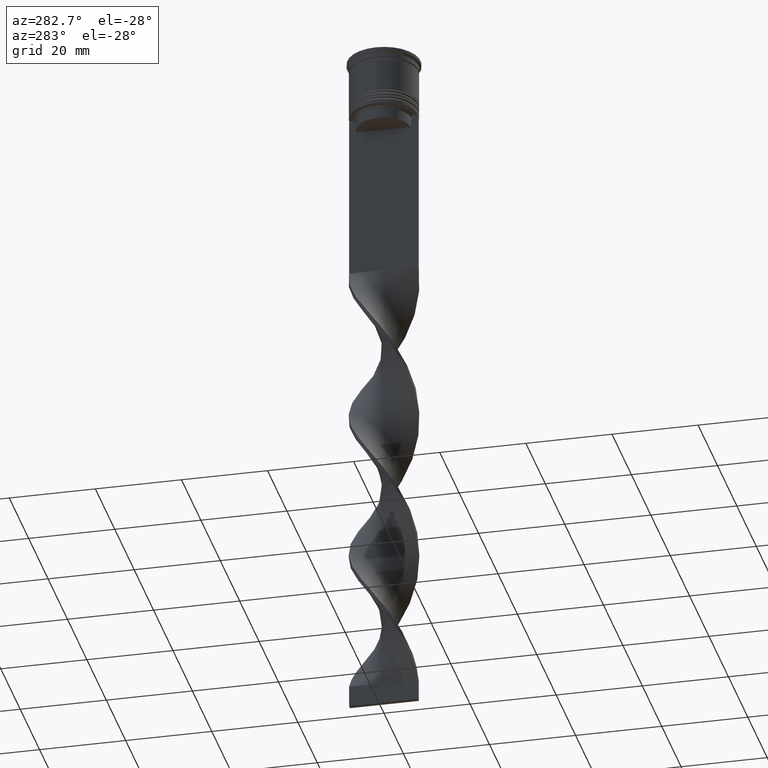
[diagram: clean part render]
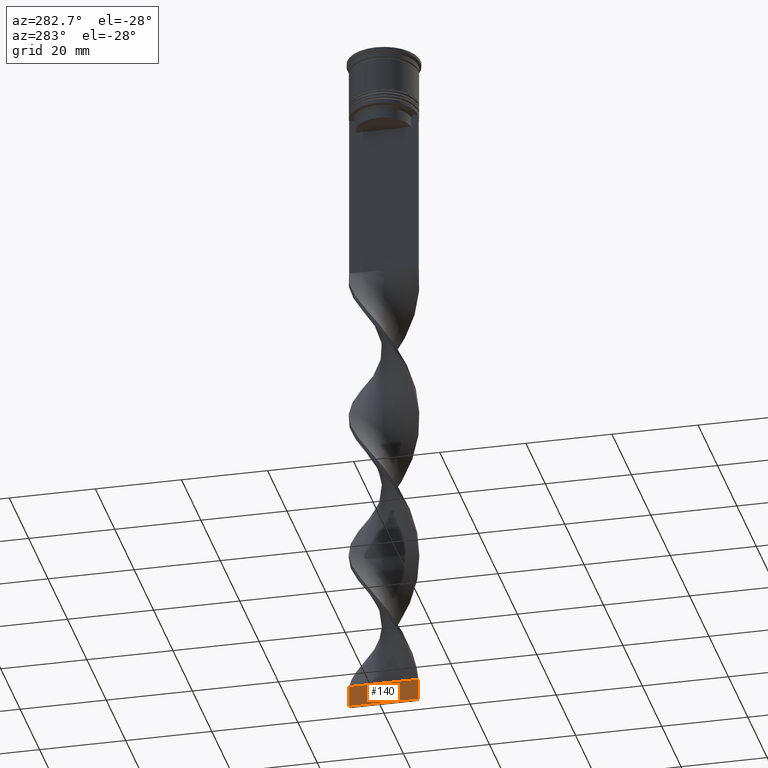
[diagram: same view with one face highlighted and labeled with its STEP entity id]
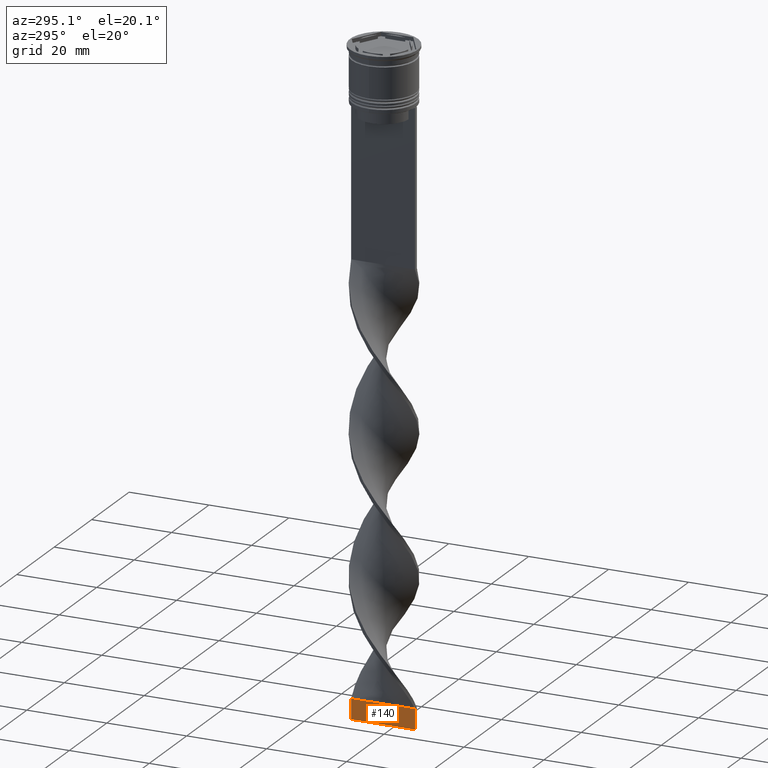
[diagram: same view with one face highlighted and labeled with its STEP entity id]
A machine part, auxiliary view. The second image highlights one B-rep face of the part: STEP entity #140.
A second angle (auxiliary view) of the same face is appended — the face is thin or edge-on in the first view.
In plain terms, the highlighted planar face has unit normal (1, -0, 0).
Its self-contained STEP definition (entity closure, byte-faithful):
#27 = EDGE_CURVE ( 'NONE', #3700, #947, #2374, .T. ) ;
#140 = ADVANCED_FACE ( 'NONE', ( #2571 ), #3396, .F. ) ;
#314 = LINE ( 'NONE', #1474, #3376 ) ;
#342 = ORIENTED_EDGE ( 'NONE', *, *, #2448, .F. ) ;
#409 = CARTESIAN_POINT ( 'NONE',  ( -0.4999999999999991673, 8.000000000000003553, -159.0000000000000000 ) ) ;
#459 = EDGE_CURVE ( 'NONE', #3183, #947, #3295, .T. ) ;
#789 = ORIENTED_EDGE ( 'NONE', *, *, #3274, .T. ) ;
#791 = ORIENTED_EDGE ( 'NONE', *, *, #459, .T. ) ;
#884 = CARTESIAN_POINT ( 'NONE',  ( -0.5000000000000011102, -7.999999999999996447, -164.0000000000000000 ) ) ;
#947 = VERTEX_POINT ( 'NONE', #409 ) ;
#1065 = CARTESIAN_POINT ( 'NONE',  ( -0.4999999999999991673, 8.000000000000003553, -164.0000000000000000 ) ) ;
#1140 = DIRECTION ( 'NONE',  ( 1.219727444046192488E-16, 1.000000000000000000, 0.000000000000000000 ) ) ;
#1421 = ORIENTED_EDGE ( 'NONE', *, *, #27, .F. ) ;
#1426 = DIRECTION ( 'NONE',  ( 1.219727444046192488E-16, 1.000000000000000000, 0.000000000000000000 ) ) ;
#1434 = DIRECTION ( 'NONE',  ( 1.000000000000000000, -1.219727444046192488E-16, 0.000000000000000000 ) ) ;
#1474 = CARTESIAN_POINT ( 'NONE',  ( -0.5000000000000011102, -7.999999999999996447, -164.0000000000000000 ) ) ;
#1677 = CARTESIAN_POINT ( 'NONE',  ( -0.5000000000000011102, -7.999999999999996447, -164.0000000000000000 ) ) ;
#1749 = DIRECTION ( 'NONE',  ( -0.000000000000000000, -0.000000000000000000, 1.000000000000000000 ) ) ;
#1927 = CARTESIAN_POINT ( 'NONE',  ( -0.5000000000000011102, -7.999999999999996447, -159.0000000000000000 ) ) ;
#2140 = VERTEX_POINT ( 'NONE', #1677 ) ;
#2321 = DIRECTION ( 'NONE',  ( -0.000000000000000000, -0.000000000000000000, 1.000000000000000000 ) ) ;
#2374 = LINE ( 'NONE', #3542, #2515 ) ;
#2406 = CARTESIAN_POINT ( 'NONE',  ( -0.4999999999999997780, 2.666666666666670515, -159.0000000000000000 ) ) ;
#2448 = EDGE_CURVE ( 'NONE', #2140, #3700, #314, .T. ) ;
#2515 = VECTOR ( 'NONE', #2321, 1000.000000000000000 ) ;
#2571 = FACE_OUTER_BOUND ( 'NONE', #3749, .T. ) ;
#2839 = LINE ( 'NONE', #884, #3356 ) ;
#2864 = CARTESIAN_POINT ( 'NONE',  ( -0.4999999999999991673, 8.000000000000003553, -159.0000000000000000 ) ) ;
#2886 = AXIS2_PLACEMENT_3D ( 'NONE', #3162, #1434, #1140 ) ;
#3148 = CARTESIAN_POINT ( 'NONE',  ( -0.5000000000000004441, -2.666666666666663410, -159.0000000000000000 ) ) ;
#3162 = CARTESIAN_POINT ( 'NONE',  ( -0.5000000000000011102, -7.999999999999996447, -164.0000000000000000 ) ) ;
#3183 = VERTEX_POINT ( 'NONE', #1927 ) ;
#3259 = CARTESIAN_POINT ( 'NONE',  ( -0.5000000000000011102, -7.999999999999996447, -159.0000000000000000 ) ) ;
#3274 = EDGE_CURVE ( 'NONE', #2140, #3183, #2839, .T. ) ;
#3295 = B_SPLINE_CURVE_WITH_KNOTS ( 'NONE', 3,
 ( #3259, #3148, #2406, #2864 ),
 .UNSPECIFIED., .F., .F.,
 ( 4, 4 ),
 ( 0.000000000000000000, 1.000000000000000000 ),
 .UNSPECIFIED. ) ;
#3356 = VECTOR ( 'NONE', #1749, 1000.000000000000000 ) ;
#3376 = VECTOR ( 'NONE', #1426, 1000.000000000000000 ) ;
#3396 = PLANE ( 'NONE',  #2886 ) ;
#3542 = CARTESIAN_POINT ( 'NONE',  ( -0.4999999999999991673, 8.000000000000003553, -164.0000000000000000 ) ) ;
#3700 = VERTEX_POINT ( 'NONE', #1065 ) ;
#3749 = EDGE_LOOP ( 'NONE', ( #791, #1421, #342, #789 ) ) ;